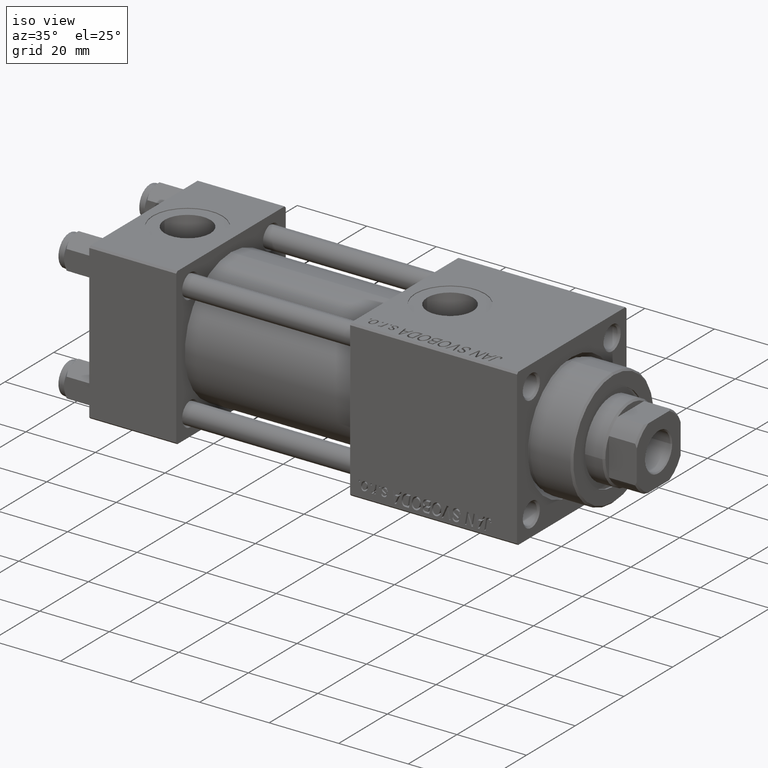
[diagram: clean part render]
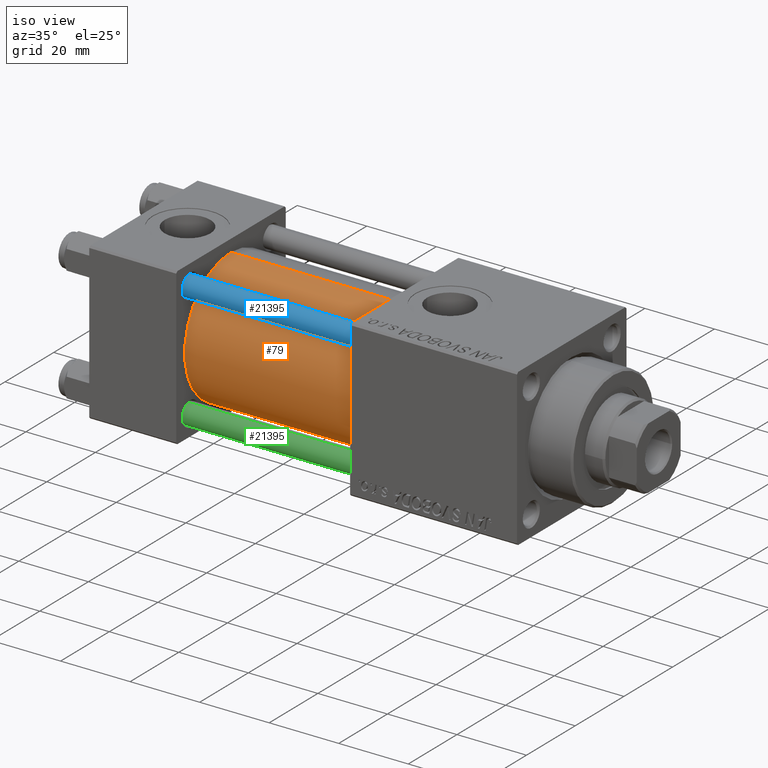
[diagram: same view with three faces highlighted in distinct colors, each labeled with its STEP entity id]
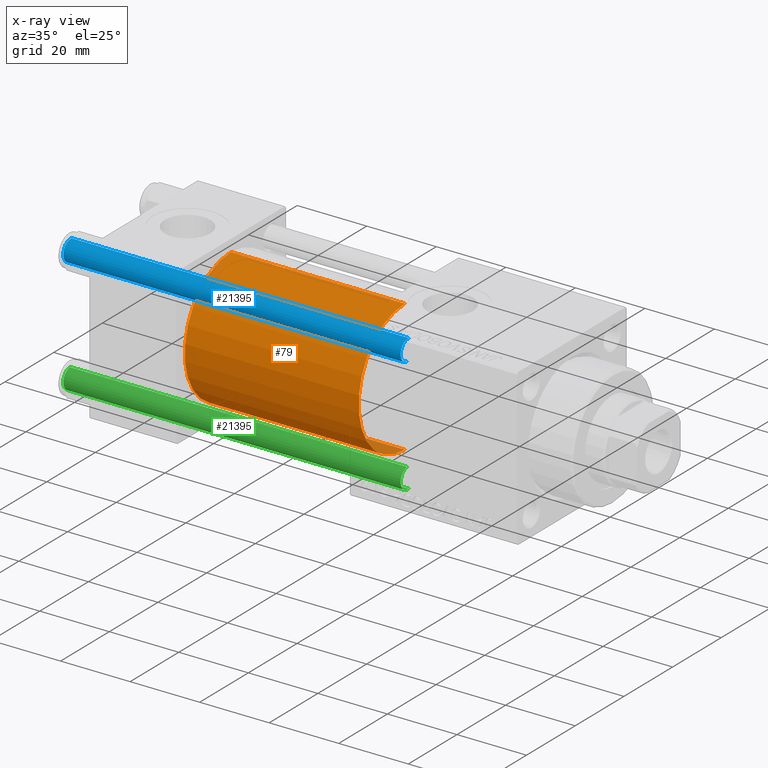
[diagram: x-ray of the same camera — body ghosted, the three highlighted faces saturated]
A machine part, iso view with three faces highlighted in distinct colors.
The next image is the same camera in x-ray (body ghosted, the three faces saturated) — at least one of them is partly hidden behind the body in this view.
Their STEP definitions:

[orange] entity #79 — the highlighted cylindrical surface (partial cylindrical patch) has radius 19 mm, axis along (-1, -0, -0).
#79 = ADVANCED_FACE ( 'NONE', ( #2496 ), #22159, .T. ) ;
#742 = CARTESIAN_POINT ( 'NONE',  ( 75.00000000000001421, -2.752562955852396712E-16, -19.00000000000000000 ) ) ;
#2496 = FACE_OUTER_BOUND ( 'NONE', #24894, .T. ) ;
#2803 = CARTESIAN_POINT ( 'NONE',  ( 25.00000000000000000, -2.602085213965210642E-15, 0.000000000000000000 ) ) ;
#3898 = CARTESIAN_POINT ( 'NONE',  ( 25.00000000000000000, -2.752562955852396712E-16, -19.00000000000000000 ) ) ;
#11538 = DIRECTION ( 'NONE',  ( 0.000000000000000000, 0.000000000000000000, -1.000000000000000000 ) ) ;
#11714 = VERTEX_POINT ( 'NONE', #36771 ) ;
#13691 = AXIS2_PLACEMENT_3D ( 'NONE', #47469, #30434, #11538 ) ;
#14041 = DIRECTION ( 'NONE',  ( -1.000000000000000000, -0.000000000000000000, -0.000000000000000000 ) ) ;
#18475 = ORIENTED_EDGE ( 'NONE', *, *, #29096, .F. ) ;
#19423 = ORIENTED_EDGE ( 'NONE', *, *, #32792, .T. ) ;
#19591 = DIRECTION ( 'NONE',  ( 1.000000000000000000, -0.000000000000000000, 0.000000000000000000 ) ) ;
#19805 = CARTESIAN_POINT ( 'NONE',  ( 75.00000000000001421, -2.602085213965210642E-15, 19.00000000000000000 ) ) ;
#20563 = EDGE_CURVE ( 'NONE', #11714, #35503, #20676, .T. ) ;
#20676 = LINE ( 'NONE', #742, #32675 ) ;
#22159 = CYLINDRICAL_SURFACE ( 'NONE', #29713, 19.00000000000000000 ) ;
#24894 = EDGE_LOOP ( 'NONE', ( #42931, #18475, #19423, #34897 ) ) ;
#25014 = CIRCLE ( 'NONE', #44257, 19.00000000000000000 ) ;
#25381 = DIRECTION ( 'NONE',  ( -1.000000000000000000, -0.000000000000000000, -0.000000000000000000 ) ) ;
#26168 = LINE ( 'NONE', #29586, #28926 ) ;
#28926 = VECTOR ( 'NONE', #25381, 1000.000000000000000 ) ;
#29096 = EDGE_CURVE ( 'NONE', #51112, #11714, #37128, .T. ) ;
#29586 = CARTESIAN_POINT ( 'NONE',  ( 75.00000000000001421, -2.602085213965210642E-15, 19.00000000000000000 ) ) ;
#29713 = AXIS2_PLACEMENT_3D ( 'NONE', #30557, #14041, #34498 ) ;
#30434 = DIRECTION ( 'NONE',  ( 1.000000000000000000, 0.000000000000000000, 0.000000000000000000 ) ) ;
#30557 = CARTESIAN_POINT ( 'NONE',  ( 75.00000000000001421, -2.602085213965210642E-15, 0.000000000000000000 ) ) ;
#30607 = DIRECTION ( 'NONE',  ( 0.000000000000000000, 0.000000000000000000, 1.000000000000000000 ) ) ;
#32490 = VERTEX_POINT ( 'NONE', #36059 ) ;
#32675 = VECTOR ( 'NONE', #36420, 1000.000000000000000 ) ;
#32792 = EDGE_CURVE ( 'NONE', #51112, #32490, #26168, .T. ) ;
#34498 = DIRECTION ( 'NONE',  ( 0.000000000000000000, 0.000000000000000000, 1.000000000000000000 ) ) ;
#34897 = ORIENTED_EDGE ( 'NONE', *, *, #49063, .T. ) ;
#35503 = VERTEX_POINT ( 'NONE', #3898 ) ;
#36059 = CARTESIAN_POINT ( 'NONE',  ( 25.00000000000000000, -2.602085213965210642E-15, 19.00000000000000000 ) ) ;
#36420 = DIRECTION ( 'NONE',  ( -1.000000000000000000, -0.000000000000000000, -0.000000000000000000 ) ) ;
#36771 = CARTESIAN_POINT ( 'NONE',  ( 75.00000000000001421, -2.752562955852396712E-16, -19.00000000000000000 ) ) ;
#37128 = CIRCLE ( 'NONE', #13691, 19.00000000000000000 ) ;
#42931 = ORIENTED_EDGE ( 'NONE', *, *, #20563, .F. ) ;
#44257 = AXIS2_PLACEMENT_3D ( 'NONE', #2803, #19591, #30607 ) ;
#47469 = CARTESIAN_POINT ( 'NONE',  ( 75.00000000000001421, -2.602085213965210642E-15, 0.000000000000000000 ) ) ;
#49063 = EDGE_CURVE ( 'NONE', #32490, #35503, #25014, .T. ) ;
#51112 = VERTEX_POINT ( 'NONE', #19805 ) ;

[blue] entity #21395 — the highlighted cylindrical surface (edge-blend (fillet) strip) has radius 3 mm, axis along (1, 0, -0).
#2324 = LINE ( 'NONE', #29353, #24799 ) ;
#4641 = VERTEX_POINT ( 'NONE', #16415 ) ;
#7238 = EDGE_CURVE ( 'NONE', #46713, #18986, #2324, .T. ) ;
#7730 = DIRECTION ( 'NONE',  ( 1.000000000000000000, 0.000000000000000000, 0.000000000000000000 ) ) ;
#9921 = CIRCLE ( 'NONE', #14949, 3.000000000000000444 ) ;
#10408 = LINE ( 'NONE', #15142, #37718 ) ;
#13653 = CARTESIAN_POINT ( 'NONE',  ( -3.000000000000000444, 0.000000000000000000, 0.5000000000000281997 ) ) ;
#14678 = EDGE_LOOP ( 'NONE', ( #48623, #34285, #41619, #31330 ) ) ;
#14949 = AXIS2_PLACEMENT_3D ( 'NONE', #15103, #18514, #7730 ) ;
#15103 = CARTESIAN_POINT ( 'NONE',  ( 0.000000000000000000, 0.000000000000000000, 0.5000000000000281997 ) ) ;
#15142 = CARTESIAN_POINT ( 'NONE',  ( 3.000000000000000444, 3.673940397442060361E-16, 98.00000000000000000 ) ) ;
#16415 = CARTESIAN_POINT ( 'NONE',  ( 3.000000000000000444, 3.673940397442060361E-16, 0.5000000000000281997 ) ) ;
#18329 = DIRECTION ( 'NONE',  ( -0.000000000000000000, -0.000000000000000000, -1.000000000000000000 ) ) ;
#18435 = FACE_OUTER_BOUND ( 'NONE', #14678, .T. ) ;
#18514 = DIRECTION ( 'NONE',  ( -0.000000000000000000, -0.000000000000000000, 1.000000000000000000 ) ) ;
#18986 = VERTEX_POINT ( 'NONE', #13653 ) ;
#20798 = EDGE_CURVE ( 'NONE', #46138, #4641, #10408, .T. ) ;
#21395 = ADVANCED_FACE ( 'NONE', ( #18435 ), #34439, .T. ) ;
#21790 = AXIS2_PLACEMENT_3D ( 'NONE', #22356, #26551, #33661 ) ;
#22356 = CARTESIAN_POINT ( 'NONE',  ( 0.000000000000000000, 0.000000000000000000, 98.00000000000000000 ) ) ;
#24799 = VECTOR ( 'NONE', #18329, 1000.000000000000000 ) ;
#26551 = DIRECTION ( 'NONE',  ( -0.000000000000000000, -0.000000000000000000, -1.000000000000000000 ) ) ;
#28438 = AXIS2_PLACEMENT_3D ( 'NONE', #34337, #46647, #30654 ) ;
#29353 = CARTESIAN_POINT ( 'NONE',  ( -3.000000000000000444, 0.000000000000000000, 98.00000000000000000 ) ) ;
#30654 = DIRECTION ( 'NONE',  ( 1.000000000000000000, 0.000000000000000000, 0.000000000000000000 ) ) ;
#31142 = DIRECTION ( 'NONE',  ( -0.000000000000000000, -0.000000000000000000, -1.000000000000000000 ) ) ;
#31330 = ORIENTED_EDGE ( 'NONE', *, *, #7238, .F. ) ;
#33484 = CIRCLE ( 'NONE', #28438, 3.000000000000000444 ) ;
#33661 = DIRECTION ( 'NONE',  ( -1.000000000000000000, 0.000000000000000000, 0.000000000000000000 ) ) ;
#34285 = ORIENTED_EDGE ( 'NONE', *, *, #20798, .T. ) ;
#34337 = CARTESIAN_POINT ( 'NONE',  ( 0.000000000000000000, 0.000000000000000000, 97.50000000000001421 ) ) ;
#34439 = CYLINDRICAL_SURFACE ( 'NONE', #21790, 3.000000000000000444 ) ;
#34463 = CARTESIAN_POINT ( 'NONE',  ( -3.000000000000000444, 0.000000000000000000, 97.50000000000001421 ) ) ;
#37718 = VECTOR ( 'NONE', #31142, 1000.000000000000000 ) ;
#40133 = CARTESIAN_POINT ( 'NONE',  ( 3.000000000000000444, 3.673940397442060361E-16, 97.50000000000001421 ) ) ;
#41619 = ORIENTED_EDGE ( 'NONE', *, *, #45193, .T. ) ;
#45193 = EDGE_CURVE ( 'NONE', #4641, #18986, #9921, .T. ) ;
#46138 = VERTEX_POINT ( 'NONE', #40133 ) ;
#46647 = DIRECTION ( 'NONE',  ( 0.000000000000000000, 0.000000000000000000, -1.000000000000000000 ) ) ;
#46713 = VERTEX_POINT ( 'NONE', #34463 ) ;
#47206 = EDGE_CURVE ( 'NONE', #46713, #46138, #33484, .T. ) ;
#48623 = ORIENTED_EDGE ( 'NONE', *, *, #47206, .T. ) ;

[green] entity #21395 — the highlighted cylindrical surface (edge-blend (fillet) strip) has radius 3 mm, axis along (-1, -0, -0).
#2324 = LINE ( 'NONE', #29353, #24799 ) ;
#4641 = VERTEX_POINT ( 'NONE', #16415 ) ;
#7238 = EDGE_CURVE ( 'NONE', #46713, #18986, #2324, .T. ) ;
#7730 = DIRECTION ( 'NONE',  ( 1.000000000000000000, 0.000000000000000000, 0.000000000000000000 ) ) ;
#9921 = CIRCLE ( 'NONE', #14949, 3.000000000000000444 ) ;
#10408 = LINE ( 'NONE', #15142, #37718 ) ;
#13653 = CARTESIAN_POINT ( 'NONE',  ( -3.000000000000000444, 0.000000000000000000, 0.5000000000000281997 ) ) ;
#14678 = EDGE_LOOP ( 'NONE', ( #48623, #34285, #41619, #31330 ) ) ;
#14949 = AXIS2_PLACEMENT_3D ( 'NONE', #15103, #18514, #7730 ) ;
#15103 = CARTESIAN_POINT ( 'NONE',  ( 0.000000000000000000, 0.000000000000000000, 0.5000000000000281997 ) ) ;
#15142 = CARTESIAN_POINT ( 'NONE',  ( 3.000000000000000444, 3.673940397442060361E-16, 98.00000000000000000 ) ) ;
#16415 = CARTESIAN_POINT ( 'NONE',  ( 3.000000000000000444, 3.673940397442060361E-16, 0.5000000000000281997 ) ) ;
#18329 = DIRECTION ( 'NONE',  ( -0.000000000000000000, -0.000000000000000000, -1.000000000000000000 ) ) ;
#18435 = FACE_OUTER_BOUND ( 'NONE', #14678, .T. ) ;
#18514 = DIRECTION ( 'NONE',  ( -0.000000000000000000, -0.000000000000000000, 1.000000000000000000 ) ) ;
#18986 = VERTEX_POINT ( 'NONE', #13653 ) ;
#20798 = EDGE_CURVE ( 'NONE', #46138, #4641, #10408, .T. ) ;
#21395 = ADVANCED_FACE ( 'NONE', ( #18435 ), #34439, .T. ) ;
#21790 = AXIS2_PLACEMENT_3D ( 'NONE', #22356, #26551, #33661 ) ;
#22356 = CARTESIAN_POINT ( 'NONE',  ( 0.000000000000000000, 0.000000000000000000, 98.00000000000000000 ) ) ;
#24799 = VECTOR ( 'NONE', #18329, 1000.000000000000000 ) ;
#26551 = DIRECTION ( 'NONE',  ( -0.000000000000000000, -0.000000000000000000, -1.000000000000000000 ) ) ;
#28438 = AXIS2_PLACEMENT_3D ( 'NONE', #34337, #46647, #30654 ) ;
#29353 = CARTESIAN_POINT ( 'NONE',  ( -3.000000000000000444, 0.000000000000000000, 98.00000000000000000 ) ) ;
#30654 = DIRECTION ( 'NONE',  ( 1.000000000000000000, 0.000000000000000000, 0.000000000000000000 ) ) ;
#31142 = DIRECTION ( 'NONE',  ( -0.000000000000000000, -0.000000000000000000, -1.000000000000000000 ) ) ;
#31330 = ORIENTED_EDGE ( 'NONE', *, *, #7238, .F. ) ;
#33484 = CIRCLE ( 'NONE', #28438, 3.000000000000000444 ) ;
#33661 = DIRECTION ( 'NONE',  ( -1.000000000000000000, 0.000000000000000000, 0.000000000000000000 ) ) ;
#34285 = ORIENTED_EDGE ( 'NONE', *, *, #20798, .T. ) ;
#34337 = CARTESIAN_POINT ( 'NONE',  ( 0.000000000000000000, 0.000000000000000000, 97.50000000000001421 ) ) ;
#34439 = CYLINDRICAL_SURFACE ( 'NONE', #21790, 3.000000000000000444 ) ;
#34463 = CARTESIAN_POINT ( 'NONE',  ( -3.000000000000000444, 0.000000000000000000, 97.50000000000001421 ) ) ;
#37718 = VECTOR ( 'NONE', #31142, 1000.000000000000000 ) ;
#40133 = CARTESIAN_POINT ( 'NONE',  ( 3.000000000000000444, 3.673940397442060361E-16, 97.50000000000001421 ) ) ;
#41619 = ORIENTED_EDGE ( 'NONE', *, *, #45193, .T. ) ;
#45193 = EDGE_CURVE ( 'NONE', #4641, #18986, #9921, .T. ) ;
#46138 = VERTEX_POINT ( 'NONE', #40133 ) ;
#46647 = DIRECTION ( 'NONE',  ( 0.000000000000000000, 0.000000000000000000, -1.000000000000000000 ) ) ;
#46713 = VERTEX_POINT ( 'NONE', #34463 ) ;
#47206 = EDGE_CURVE ( 'NONE', #46713, #46138, #33484, .T. ) ;
#48623 = ORIENTED_EDGE ( 'NONE', *, *, #47206, .T. ) ;